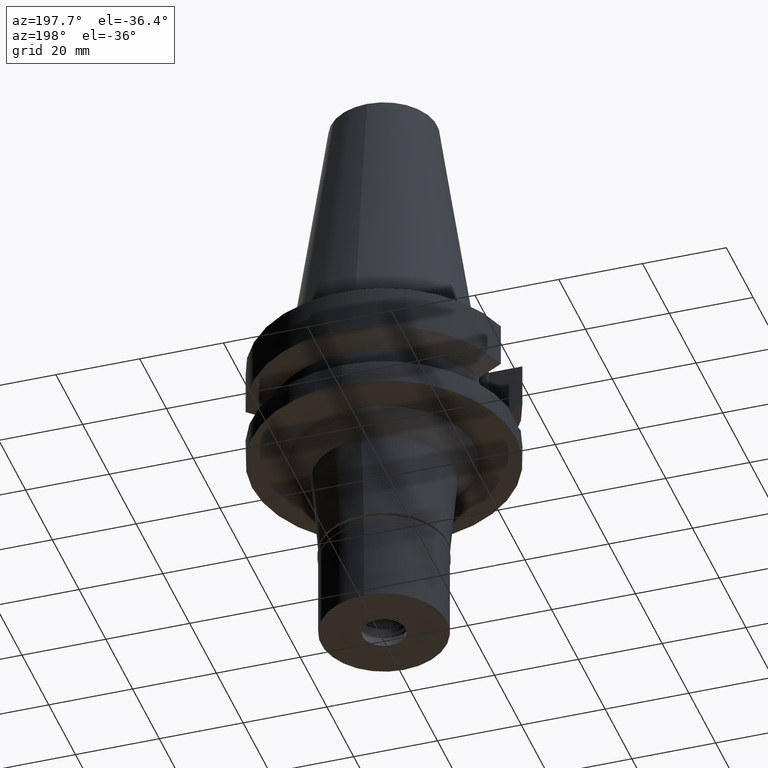
[diagram: clean part render]
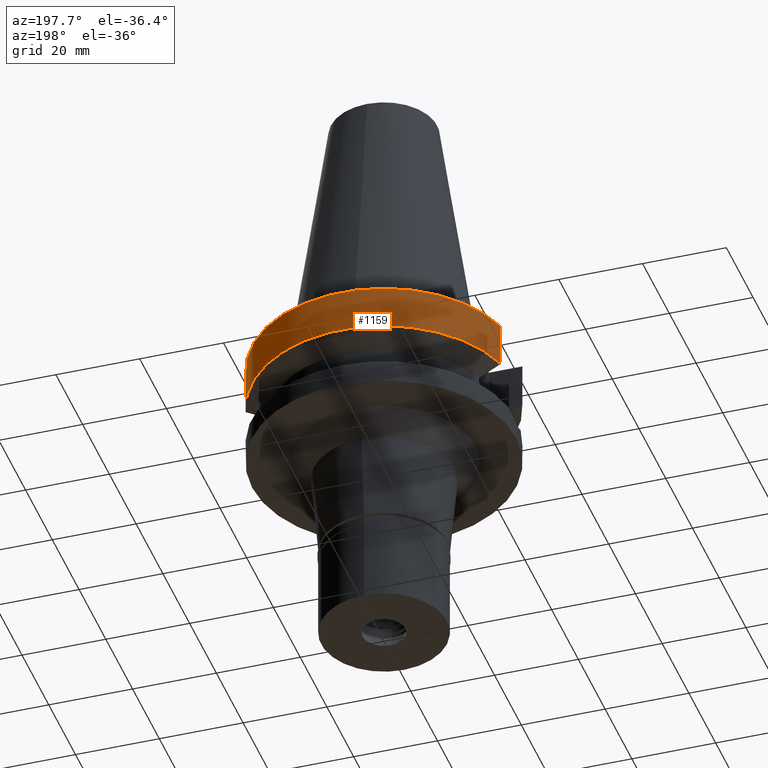
[diagram: same view with one face highlighted and labeled with its STEP entity id]
A machine part, auxiliary view. The second image highlights one B-rep face of the part: STEP entity #1159.
In plain terms, the highlighted cylindrical surface (partial cylindrical patch) has radius 31.5 mm, axis along (0, 0, -1).
Its self-contained STEP definition (entity closure, byte-faithful):
#266 = AXIS2_PLACEMENT_3D ( 'NONE', #2028, #588, #2752 ) ;
#304 = EDGE_CURVE ( 'NONE', #1804, #1834, #1668, .T. ) ;
#390 = DIRECTION ( 'NONE',  ( 0.0000000000000000000, 0.0000000000000000000, -1.000000000000000000 ) ) ;
#396 = DIRECTION ( 'NONE',  ( -1.822505241512990391E-08, 6.894758849760961271E-08, 0.9999999999999973355 ) ) ;
#493 = CARTESIAN_POINT ( 'NONE',  ( -30.45402272279000044, 8.050000000000000711, -1.000000000000000000 ) ) ;
#507 = ORIENTED_EDGE ( 'NONE', *, *, #2027, .T. ) ;
#588 = DIRECTION ( 'NONE',  ( 0.0000000000000000000, 0.0000000000000000000, 1.000000000000000000 ) ) ;
#639 = DIRECTION ( 'NONE',  ( 0.0000000000000000000, 1.000000000000000000, 0.0000000000000000000 ) ) ;
#717 = LINE ( 'NONE', #2353, #1084 ) ;
#901 = ORIENTED_EDGE ( 'NONE', *, *, #1747, .F. ) ;
#911 = CYLINDRICAL_SURFACE ( 'NONE', #1381, 31.50000000000000000 ) ;
#1010 = EDGE_CURVE ( 'NONE', #1804, #2176, #1943, .T. ) ;
#1084 = VECTOR ( 'NONE', #396, 1000.000000000000227 ) ;
#1098 = CARTESIAN_POINT ( 'NONE',  ( 0.0000000000000000000, 2.107433444312999912E-14, -1.000000000000000000 ) ) ;
#1159 = ADVANCED_FACE ( 'NONE', ( #2562 ), #911, .T. ) ;
#1237 = CARTESIAN_POINT ( 'NONE',  ( 30.45402291533999772, 8.049999271533000211, -11.56551221380999905 ) ) ;
#1381 = AXIS2_PLACEMENT_3D ( 'NONE', #1642, #390, #2806 ) ;
#1529 = VECTOR ( 'NONE', #2390, 999.9999999999998863 ) ;
#1598 = ORIENTED_EDGE ( 'NONE', *, *, #304, .F. ) ;
#1627 = CIRCLE ( 'NONE', #266, 31.50000000000000000 ) ;
#1642 = CARTESIAN_POINT ( 'NONE',  ( 0.0000000000000000000, 2.107433444312999912E-14, 72.08499999999999375 ) ) ;
#1668 = LINE ( 'NONE', #1913, #1529 ) ;
#1747 = EDGE_CURVE ( 'NONE', #1810, #2176, #717, .T. ) ;
#1804 = VERTEX_POINT ( 'NONE', #493 ) ;
#1810 = VERTEX_POINT ( 'NONE', #1237 ) ;
#1834 = VERTEX_POINT ( 'NONE', #2658 ) ;
#1913 = CARTESIAN_POINT ( 'NONE',  ( -30.45402272279000044, 8.050000000000000711, -1.000000000000000000 ) ) ;
#1943 = CIRCLE ( 'NONE', #2696, 31.50000000000000000 ) ;
#2027 = EDGE_CURVE ( 'NONE', #1810, #1834, #1627, .T. ) ;
#2028 = CARTESIAN_POINT ( 'NONE',  ( 0.0000000000000000000, 1.065333950388000029E-14, -11.56550565266999975 ) ) ;
#2137 = CARTESIAN_POINT ( 'NONE',  ( 30.45402272279000044, 8.050000000000000711, -1.000000000000000000 ) ) ;
#2176 = VERTEX_POINT ( 'NONE', #2137 ) ;
#2353 = CARTESIAN_POINT ( 'NONE',  ( 30.45402291533999772, 8.049999271533000211, -11.56551221380999905 ) ) ;
#2390 = DIRECTION ( 'NONE',  ( 1.039363061299018430E-07, 3.932017778502066087E-07, -0.9999999999999173994 ) ) ;
#2477 = ORIENTED_EDGE ( 'NONE', *, *, #1010, .T. ) ;
#2524 = DIRECTION ( 'NONE',  ( 0.0000000000000000000, 0.0000000000000000000, -1.000000000000000000 ) ) ;
#2562 = FACE_OUTER_BOUND ( 'NONE', #2869, .T. ) ;
#2658 = CARTESIAN_POINT ( 'NONE',  ( -30.45402162465000018, 8.050004154360999920, -11.56546823196000062 ) ) ;
#2696 = AXIS2_PLACEMENT_3D ( 'NONE', #1098, #2524, #639 ) ;
#2752 = DIRECTION ( 'NONE',  ( 0.0000000000000000000, 1.000000000000000000, 0.0000000000000000000 ) ) ;
#2806 = DIRECTION ( 'NONE',  ( 0.0000000000000000000, -1.000000000000000000, 0.0000000000000000000 ) ) ;
#2869 = EDGE_LOOP ( 'NONE', ( #1598, #2477, #901, #507 ) ) ;